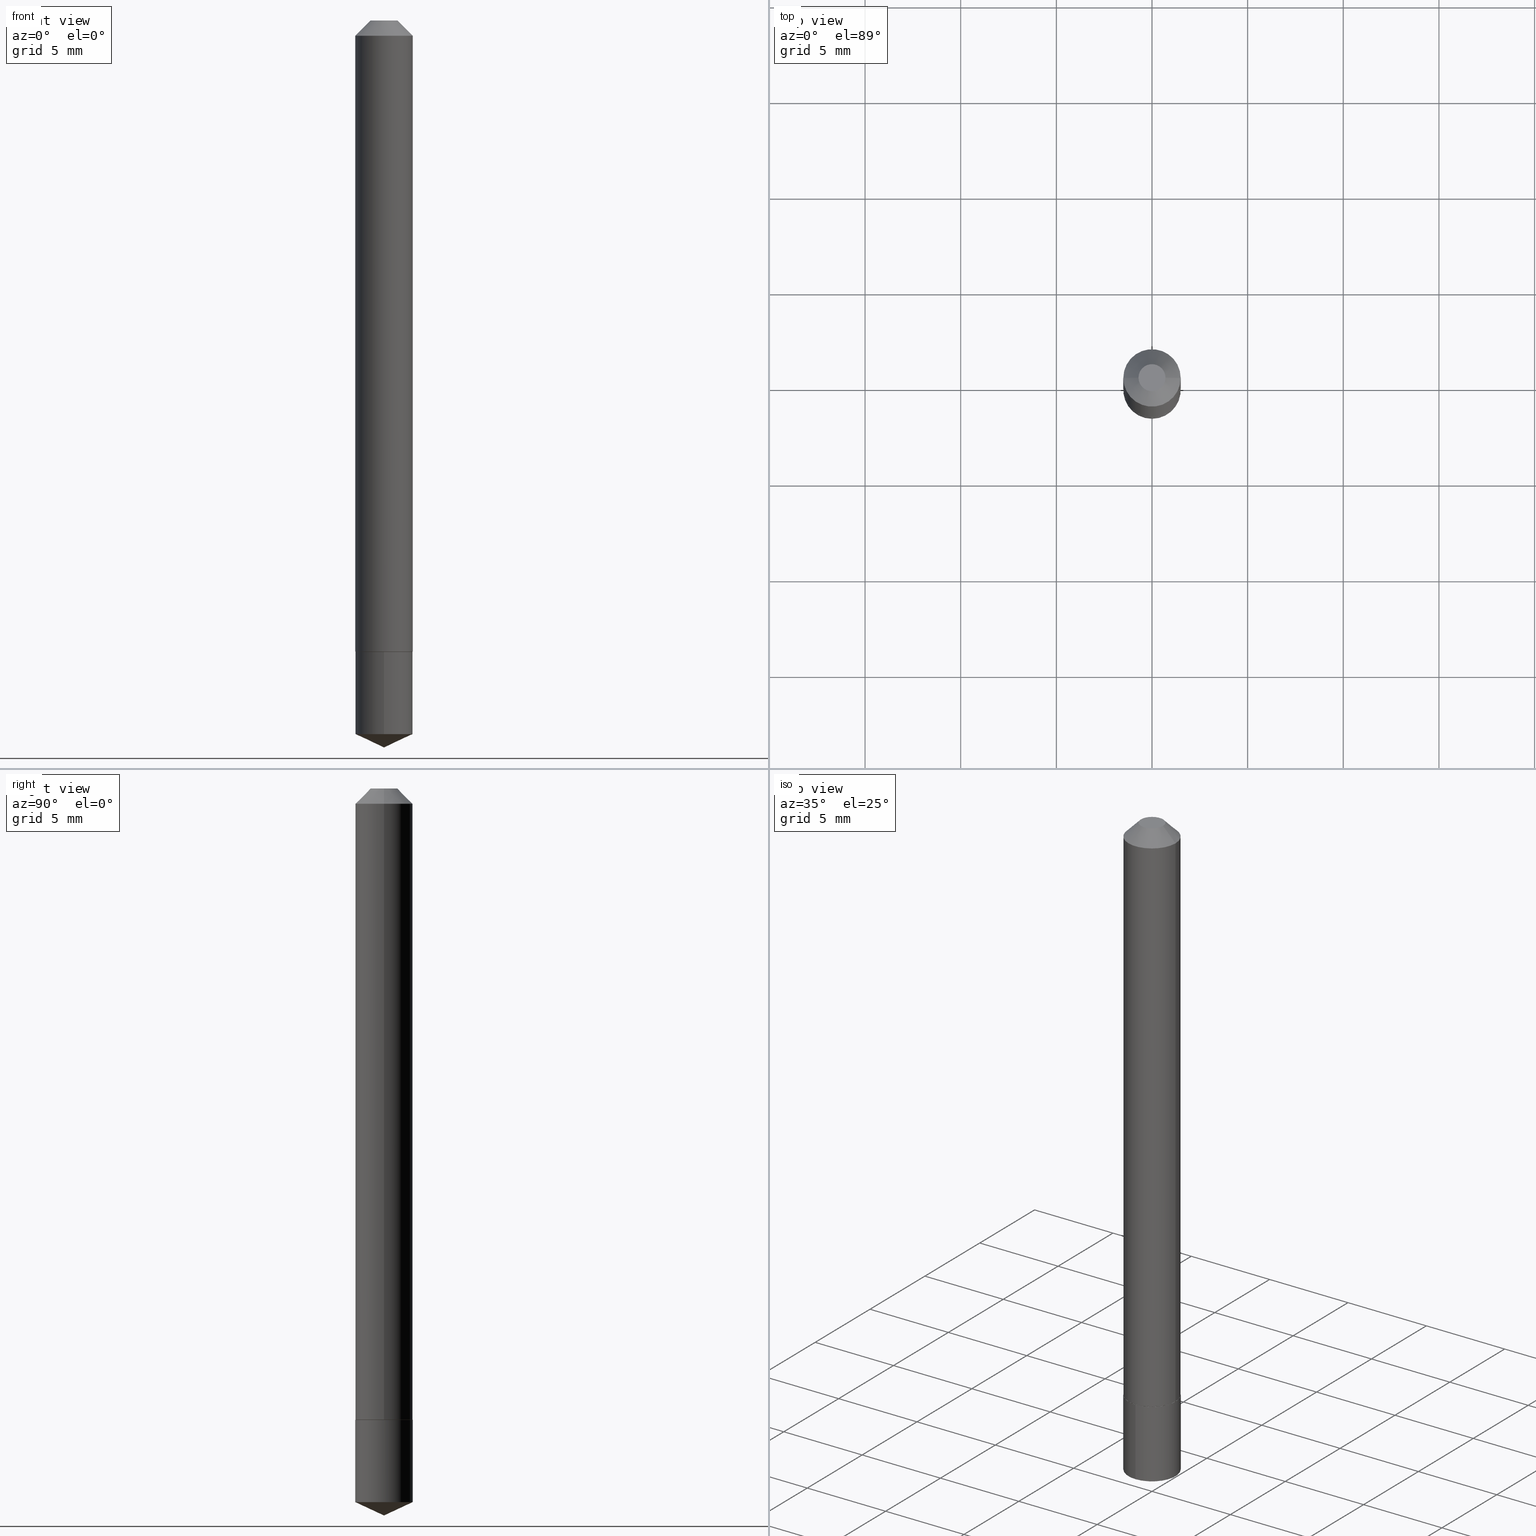
[diagram: canonical four-view strip — front | top / right | iso, engineering-drawing reading convention]
A machine part, canonical four-view strip (front | top / right | iso — engineering-drawing reading convention). The complete STEP part file that produces these views, byte-faithful:
ISO-10303-21;
HEADER;
FILE_DESCRIPTION (( 'STEP AP203' ),
    '1' );
FILE_NAME ('7047.STEP',
    '2024-04-23T14:56:22',
    ( '' ),
    ( '' ),
    'SwSTEP 2.0',
    'SolidWorks 2023',
    '' );
FILE_SCHEMA (( 'CONFIG_CONTROL_DESIGN' ));
ENDSEC;

DATA;
#1 = CALENDAR_DATE ( 2024, 23, 4 ) ;
#2 = AXIS2_PLACEMENT_3D ( 'NONE', #24, #349, #142 ) ;
#3 = EDGE_LOOP ( 'NONE', ( #274, #36 ) ) ;
#4 = CARTESIAN_POINT ( 'NONE',  ( 3.177153072995728757E-29, -4.536132555425014733E-15, -1.299199999999999910 ) ) ;
#5 = ORIENTED_EDGE ( 'NONE', *, *, #292, .F. ) ;
#6 = CARTESIAN_POINT ( 'NONE',  ( 3.175930338592637077E-29, -4.534386814755593230E-15, -1.298699999999999966 ) ) ;
#7 = EDGE_LOOP ( 'NONE', ( #213, #218, #68, #185 ) ) ;
#8 = LINE ( 'NONE', #341, #281 ) ;
#9 = AXIS2_PLACEMENT_3D ( 'NONE', #223, #344, #75 ) ;
#10 = VERTEX_POINT ( 'NONE', #284 ) ;
#11 = CIRCLE ( 'NONE', #18, 0.05905000000000000526 ) ;
#12 = LOCAL_TIME ( 10, 56, 22.00000000000000000, #379 ) ;
#13 = DIRECTION ( 'NONE',  ( 1.000000000000000000, -6.982962677686266711E-15, 0.000000000000000000 ) ) ;
#14 = MANIFOLD_SOLID_BREP ( 'Body-Move/Copy2[1]', #57 ) ;
#15 = DIRECTION ( 'NONE',  ( -2.445468806185136597E-29, 3.491481338843145583E-15, 1.000000000000000000 ) ) ;
#16 = CC_DESIGN_PERSON_AND_ORGANIZATION_ASSIGNMENT ( #105, #155, ( #196 ) ) ;
#17 = CARTESIAN_POINT ( 'NONE',  ( 1.033218263338721736E-47, -1.475161848834461579E-33, -4.225031457058385402E-19 ) ) ;
#18 = AXIS2_PLACEMENT_3D ( 'NONE', #60, #85, #257 ) ;
#19 = LOCAL_TIME ( 10, 56, 22.00000000000000000, #278 ) ;
#20 = EDGE_CURVE ( 'NONE', #154, #63, #226, .T. ) ;
#21 = DIRECTION ( 'NONE',  ( 1.000000000000000000, -6.982962677686267499E-15, 4.876176775795936353E-29 ) ) ;
#22 = CC_DESIGN_PERSON_AND_ORGANIZATION_ASSIGNMENT ( #43, #340, ( #104 ) ) ;
#23 = CARTESIAN_POINT ( 'NONE',  ( 3.177153072995728757E-29, -4.536132555425014733E-15, -1.299199999999999910 ) ) ;
#24 = CARTESIAN_POINT ( 'NONE',  ( 0.000000000000000000, 0.000000000000000000, 0.000000000000000000 ) ) ;
#25 = EDGE_CURVE ( 'NONE', #388, #210, #357, .T. ) ;
#26 =( CONVERSION_BASED_UNIT ( 'INCH', #288 ) LENGTH_UNIT ( ) NAMED_UNIT ( #374 ) );
#27 = AXIS2_PLACEMENT_3D ( 'NONE', #244, #100, #131 ) ;
#28 = APPROVAL_PERSON_ORGANIZATION ( #303, #359, #329 ) ;
#29 = PRODUCT_DEFINITION ( 'UNKNOWN', '', #104, #146 ) ;
#30 = CARTESIAN_POINT ( 'NONE',  ( 4.195754854663708995E-16, 0.05904999999999546723, -1.299200000000000133 ) ) ;
#31 = ADVANCED_FACE ( 'NONE', ( #253 ), #265, .T. ) ;
#32 = AXIS2_PLACEMENT_3D ( 'NONE', #6, #252, #194 ) ;
#33 = APPROVAL_DATE_TIME ( #296, #89 ) ;
#34 = ORIENTED_EDGE ( 'NONE', *, *, #74, .T. ) ;
#35 = SHAPE_DEFINITION_REPRESENTATION ( #315, #148 ) ;
#36 = ORIENTED_EDGE ( 'NONE', *, *, #292, .T. ) ;
#37 = ADVANCED_FACE ( 'NONE', ( #367 ), #101, .T. ) ;
#38 = CARTESIAN_POINT ( 'NONE',  ( 3.177153072995728757E-29, -4.536132555425014733E-15, -1.299199999999999910 ) ) ;
#39 = CIRCLE ( 'NONE', #167, 0.05904999999999999832 ) ;
#40 = ORIENTED_EDGE ( 'NONE', *, *, #92, .T. ) ;
#41 = FACE_OUTER_BOUND ( 'NONE', #277, .T. ) ;
#42 = ORIENTED_EDGE ( 'NONE', *, *, #255, .F. ) ;
#43 = PERSON_AND_ORGANIZATION ( #186, #353 ) ;
#44 = DIRECTION ( 'NONE',  ( -6.982962677686265922E-15, -1.000000000000000000, 4.626330217890369336E-15 ) ) ;
#45 = CARTESIAN_POINT ( 'NONE',  ( -0.05905000000000000526, -1.902172317830880095E-15, -0.03125000000000021511 ) ) ;
#46 = CC_DESIGN_DATE_AND_TIME_ASSIGNMENT ( #151, #267, ( #196 ) ) ;
#47 = DIRECTION ( 'NONE',  ( -0.7071067811868433362, 7.493145998871423856E-15, 0.7071067811862516983 ) ) ;
#48 = DIRECTION ( 'NONE',  ( -2.445468806185136597E-29, 3.491481338843145583E-15, 1.000000000000000000 ) ) ;
#49 = AXIS2_PLACEMENT_3D ( 'NONE', #313, #249, #273 ) ;
#50 = CARTESIAN_POINT ( 'NONE',  ( -4.123439461173421824E-16, -0.05905000000000452942, -1.299199999999999688 ) ) ;
#51 = UNCERTAINTY_MEASURE_WITH_UNIT (LENGTH_MEASURE( 1.000000000000000082E-05 ), #26, 'distance_accuracy_value', 'NONE');
#52 = CYLINDRICAL_SURFACE ( 'NONE', #120, 0.05904999999999999832 ) ;
#53 = EDGE_CURVE ( 'NONE', #63, #210, #248, .T. ) ;
#54 = PRODUCT ( '7047', '7047', '', ( #227 ) ) ;
#55 = DIRECTION ( 'NONE',  ( 1.000000000000000000, -6.982962677686266711E-15, 4.876227310796756046E-29 ) ) ;
#56 = EDGE_CURVE ( 'NONE', #243, #216, #250, .T. ) ;
#57 = CLOSED_SHELL ( 'NONE', ( #373, #295, #215, #287, #301 ) ) ;
#58 = AXIS2_PLACEMENT_3D ( 'NONE', #17, #222, #168 ) ;
#59 = CALENDAR_DATE ( 2024, 23, 4 ) ;
#60 = CARTESIAN_POINT ( 'NONE',  ( 7.642090019328604414E-31, -1.091087918388490513E-16, -0.03125000000000021511 ) ) ;
#61 = CARTESIAN_POINT ( 'NONE',  ( 1.033218263338721736E-47, -1.475161848834461579E-33, -4.225031457058385402E-19 ) ) ;
#62 = CC_DESIGN_APPROVAL ( #359, ( #196 ) ) ;
#63 = VERTEX_POINT ( 'NONE', #45 ) ;
#64 = CALENDAR_DATE ( 2024, 23, 4 ) ;
#65 = EDGE_LOOP ( 'NONE', ( #263, #121 ) ) ;
#66 = APPROVAL_DATE_TIME ( #211, #359 ) ;
#67 = FACE_OUTER_BOUND ( 'NONE', #319, .T. ) ;
#68 = ORIENTED_EDGE ( 'NONE', *, *, #92, .F. ) ;
#69 = DIRECTION ( 'NONE',  ( 2.445313604768416258E-29, -3.491703596105404816E-15, -1.000000000000000000 ) ) ;
#70 = VECTOR ( 'NONE', #386, 39.37007874015748143 ) ;
#71 = CONICAL_SURFACE ( 'NONE', #145, 0.05905000000000000526, 0.7853981633974449483 ) ;
#72 = VERTEX_POINT ( 'NONE', #165 ) ;
#73 = DIRECTION ( 'NONE',  ( -2.445313604768416538E-29, 3.491703596105404816E-15, 1.000000000000000000 ) ) ;
#74 = EDGE_CURVE ( 'NONE', #243, #10, #209, .T. ) ;
#75 = DIRECTION ( 'NONE',  ( 1.000000000000000000, -6.982962677686267499E-15, 0.000000000000000000 ) ) ;
#76 = CARTESIAN_POINT ( 'NONE',  ( 3.177153072995728757E-29, -4.536132555425014733E-15, -1.299199999999999910 ) ) ;
#77 = CARTESIAN_POINT ( 'NONE',  ( 3.177153072995728197E-29, -4.536132555425013945E-15, -1.299199999999999688 ) ) ;
#78 = AXIS2_PLACEMENT_3D ( 'NONE', #61, #79, #55 ) ;
#79 = DIRECTION ( 'NONE',  ( -2.445468806185136597E-29, 3.491481338843145583E-15, 1.000000000000000000 ) ) ;
#80 = DIRECTION ( 'NONE',  ( -2.445313604768416538E-29, 3.491703596105404816E-15, 1.000000000000000000 ) ) ;
#81 = CC_DESIGN_DATE_AND_TIME_ASSIGNMENT ( #113, #231, ( #29 ) ) ;
#82 = CARTESIAN_POINT ( 'NONE',  ( 0.000000000000000000, 0.000000000000000000, 0.000000000000000000 ) ) ;
#83 = AXIS2_PLACEMENT_3D ( 'NONE', #242, #96, #212 ) ;
#84 = DIRECTION ( 'NONE',  ( -2.445313604768416538E-29, 3.491703596105404816E-15, 1.000000000000000000 ) ) ;
#85 = DIRECTION ( 'NONE',  ( -2.445468806185136597E-29, 3.491481338843145583E-15, 1.000000000000000000 ) ) ;
#86 = APPROVAL_STATUS ( 'not_yet_approved' ) ;
#87 = AXIS2_PLACEMENT_3D ( 'NONE', #275, #73, #187 ) ;
#88 = LINE ( 'NONE', #354, #325 ) ;
#89 = APPROVAL ( #86, 'UNSPECIFIED' ) ;
#90 = CARTESIAN_POINT ( 'NONE',  ( 0.05905000000000000526, -5.142211986072580675E-16, -0.03125000000000021511 ) ) ;
#91 = AXIS2_PLACEMENT_3D ( 'NONE', #4, #307, #337 ) ;
#92 = EDGE_CURVE ( 'NONE', #210, #63, #11, .T. ) ;
#93 = ORIENTED_EDGE ( 'NONE', *, *, #271, .F. ) ;
#94 = DIRECTION ( 'NONE',  ( -2.445313604768416538E-29, 3.491703596105404816E-15, 1.000000000000000000 ) ) ;
#95 = ORIENTED_EDGE ( 'NONE', *, *, #25, .T. ) ;
#96 = DIRECTION ( 'NONE',  ( -2.445313604768416538E-29, 3.491703596105404816E-15, 1.000000000000000000 ) ) ;
#97 = CC_DESIGN_PERSON_AND_ORGANIZATION_ASSIGNMENT ( #260, #347, ( #54 ) ) ;
#98 = EDGE_LOOP ( 'NONE', ( #308, #331, #93, #239 ) ) ;
#99 = ADVANCED_FACE ( 'NONE', ( #378 ), #114, .T. ) ;
#100 = DIRECTION ( 'NONE',  ( -2.438088387897960049E-29, 3.491481338843145188E-15, 1.000000000000000000 ) ) ;
#101 = CONICAL_SURFACE ( 'NONE', #200, 0.05905000000000015792, 0.7853981633978666110 ) ;
#102 = CARTESIAN_POINT ( 'NONE',  ( 3.175930338592637077E-29, -4.534386814755593230E-15, -1.298699999999999966 ) ) ;
#103 = CIRCLE ( 'NONE', #352, 0.05855000000000011584 ) ;
#104 = PRODUCT_DEFINITION_FORMATION_WITH_SPECIFIED_SOURCE ( 'ANY', '', #54, .NOT_KNOWN. ) ;
#105 = PERSON_AND_ORGANIZATION ( #186, #353 ) ;
#106 = CARTESIAN_POINT ( 'NONE',  ( 0.05905000000000015792, -4.946730760872968939E-15, -1.298699999999999966 ) ) ;
#107 = CARTESIAN_POINT ( 'NONE',  ( 3.658433684094027732E-29, -5.223937750133296047E-15, -1.496099999999999985 ) ) ;
#108 = DIRECTION ( 'NONE',  ( 1.000000000000000000, -6.982962677686270655E-15, 0.000000000000000000 ) ) ;
#109 = ADVANCED_FACE ( 'NONE', ( #203 ), #71, .T. ) ;
#110 =( GEOMETRIC_REPRESENTATION_CONTEXT ( 3 ) GLOBAL_UNCERTAINTY_ASSIGNED_CONTEXT ( ( #51 ) ) GLOBAL_UNIT_ASSIGNED_CONTEXT ( ( #26, #345, #137 ) ) REPRESENTATION_CONTEXT ( 'NONE', 'WORKASPACE' ) );
#111 = DIRECTION ( 'NONE',  ( 1.000000000000000000, 0.000000000000000000, 0.000000000000000000 ) ) ;
#112 = DIRECTION ( 'NONE',  ( -0.7071067811865451302, 2.468850131082231817E-15, -0.7071067811865499042 ) ) ;
#113 = DATE_AND_TIME ( #59, #12 ) ;
#114 = CYLINDRICAL_SURFACE ( 'NONE', #2, 0.05905000000000008159 ) ;
#115 = CC_DESIGN_PERSON_AND_ORGANIZATION_ASSIGNMENT ( #126, #327, ( #104 ) ) ;
#116 = AXIS2_PLACEMENT_3D ( 'NONE', #280, #80, #228 ) ;
#117 = APPROVAL_STATUS ( 'not_yet_approved' ) ;
#118 = ADVANCED_FACE ( 'NONE', ( #387 ), #205, .F. ) ;
#119 = ORIENTED_EDGE ( 'NONE', *, *, #140, .F. ) ;
#120 = AXIS2_PLACEMENT_3D ( 'NONE', #23, #84, #224 ) ;
#121 = ORIENTED_EDGE ( 'NONE', *, *, #247, .T. ) ;
#122 = APPROVAL_STATUS ( 'not_yet_approved' ) ;
#123 = ORIENTED_EDGE ( 'NONE', *, *, #247, .F. ) ;
#124 = VECTOR ( 'NONE', #112, 39.37007874015748143 ) ;
#125 = ORIENTED_EDGE ( 'NONE', *, *, #184, .F. ) ;
#126 = PERSON_AND_ORGANIZATION ( #186, #353 ) ;
#127 = DIRECTION ( 'NONE',  ( 6.982962677686265922E-15, 1.000000000000000000, -3.491703596105404816E-15 ) ) ;
#128 = ORIENTED_EDGE ( 'NONE', *, *, #286, .T. ) ;
#129 = DIRECTION ( 'NONE',  ( -2.445313604768416538E-29, 3.491703596105404816E-15, 1.000000000000000000 ) ) ;
#130 = ORIENTED_EDGE ( 'NONE', *, *, #356, .F. ) ;
#131 = DIRECTION ( 'NONE',  ( 1.000000000000000000, -6.982962677686265922E-15, 4.876176775795935793E-29 ) ) ;
#132 = CC_DESIGN_APPROVAL ( #149, ( #29 ) ) ;
#133 = ORIENTED_EDGE ( 'NONE', *, *, #356, .T. ) ;
#134 = CARTESIAN_POINT ( 'NONE',  ( 3.177153072995728197E-29, -4.536132555425013945E-15, -1.299199999999999688 ) ) ;
#135 = DIRECTION ( 'NONE',  ( -2.445468806185136597E-29, 3.491481338843145583E-15, 1.000000000000000000 ) ) ;
#136 = EDGE_CURVE ( 'NONE', #361, #210, #383, .T. ) ;
#137 =( NAMED_UNIT ( * ) SI_UNIT ( $, .STERADIAN. ) SOLID_ANGLE_UNIT ( ) );
#138 = VECTOR ( 'NONE', #207, 39.37007874015748143 ) ;
#139 = APPROVAL_PERSON_ORGANIZATION ( #350, #89, #268 ) ;
#140 = EDGE_CURVE ( 'NONE', #10, #161, #297, .T. ) ;
#141 = LINE ( 'NONE', #173, #124 ) ;
#142 = DIRECTION ( 'NONE',  ( 1.000000000000000000, -6.982962677686267499E-15, 4.876176775795936353E-29 ) ) ;
#143 = CARTESIAN_POINT ( 'NONE',  ( 0.05905000000000015792, -4.946730760872968939E-15, -1.298699999999999966 ) ) ;
#144 = VERTEX_POINT ( 'NONE', #150 ) ;
#145 = AXIS2_PLACEMENT_3D ( 'NONE', #175, #259, #180 ) ;
#146 = DESIGN_CONTEXT ( 'detailed design', #230, 'design' ) ;
#147 = FACE_OUTER_BOUND ( 'NONE', #7, .T. ) ;
#148 = ADVANCED_BREP_SHAPE_REPRESENTATION ( '7047', ( #14, #269, #376 ), #110 ) ;
#149 = APPROVAL ( #117, 'UNSPECIFIED' ) ;
#150 = CARTESIAN_POINT ( 'NONE',  ( 3.658433684094027732E-29, -5.223937750133295258E-15, -1.496099999999999985 ) ) ;
#151 = DATE_AND_TIME ( #219, #19 ) ;
#152 = DIRECTION ( 'NONE',  ( -1.000000000000000000, 6.982962677686265922E-15, -4.876176775795935793E-29 ) ) ;
#153 = EDGE_LOOP ( 'NONE', ( #190, #208, #241 ) ) ;
#154 = VERTEX_POINT ( 'NONE', #264 ) ;
#155 = PERSON_AND_ORGANIZATION_ROLE ( 'classification_officer' ) ;
#156 = CARTESIAN_POINT ( 'NONE',  ( 0.05905000000000000526, -5.214527379562231333E-16, -0.03125000000000021511 ) ) ;
#157 = DIRECTION ( 'NONE',  ( -2.445468806185136877E-29, 3.491481338843145188E-15, 1.000000000000000000 ) ) ;
#158 = ORIENTED_EDGE ( 'NONE', *, *, #56, .T. ) ;
#159 = CARTESIAN_POINT ( 'NONE',  ( -0.05855000000000011584, -4.117460556463364149E-15, -1.299199999999999688 ) ) ;
#160 = EDGE_CURVE ( 'NONE', #144, #10, #88, .T. ) ;
#161 = VERTEX_POINT ( 'NONE', #238 ) ;
#162 = SECURITY_CLASSIFICATION_LEVEL ( 'unclassified' ) ;
#163 = CC_DESIGN_PERSON_AND_ORGANIZATION_ASSIGNMENT ( #291, #202, ( #29 ) ) ;
#164 = DIRECTION ( 'NONE',  ( -6.328713451373380423E-15, -0.9063077870366499367, 0.4226182617406991082 ) ) ;
#165 = CARTESIAN_POINT ( 'NONE',  ( 0.05855000000000011584, -4.944985020203545858E-15, -1.299199999999999688 ) ) ;
#166 = PLANE ( 'NONE',  #27 ) ;
#167 = AXIS2_PLACEMENT_3D ( 'NONE', #76, #365, #44 ) ;
#168 = DIRECTION ( 'NONE',  ( 1.000000000000000000, -6.982962677686266711E-15, 4.876227310796756046E-29 ) ) ;
#169 =( LENGTH_UNIT ( ) NAMED_UNIT ( * ) SI_UNIT ( $, .METRE. ) );
#170 = VECTOR ( 'NONE', #314, 39.37007874015748143 ) ;
#171 = CIRCLE ( 'NONE', #78, 0.02779999999999999832 ) ;
#172 = DATE_AND_TIME ( #317, #346 ) ;
#173 = CARTESIAN_POINT ( 'NONE',  ( -0.05905000000000000526, 3.032351542785250307E-16, -0.03125000000000021511 ) ) ;
#174 = CARTESIAN_POINT ( 'NONE',  ( 0.000000000000000000, 0.000000000000000000, 0.000000000000000000 ) ) ;
#175 = CARTESIAN_POINT ( 'NONE',  ( 7.642090019328604414E-31, -1.091087918388490513E-16, -0.03125000000000021511 ) ) ;
#176 = DIRECTION ( 'NONE',  ( 2.438088387897960049E-29, -3.491481338843145188E-15, -1.000000000000000000 ) ) ;
#177 = ORIENTED_EDGE ( 'NONE', *, *, #53, .F. ) ;
#178 = CIRCLE ( 'NONE', #32, 0.05905000000000015792 ) ;
#179 = APPROVAL_PERSON_ORGANIZATION ( #198, #149, #199 ) ;
#180 = DIRECTION ( 'NONE',  ( -1.000000000000000000, 6.982962677686267499E-15, 0.000000000000000000 ) ) ;
#181 = ORIENTED_EDGE ( 'NONE', *, *, #56, .F. ) ;
#182 = ORIENTED_EDGE ( 'NONE', *, *, #276, .F. ) ;
#183 = FACE_OUTER_BOUND ( 'NONE', #153, .T. ) ;
#184 = EDGE_CURVE ( 'NONE', #154, #388, #178, .T. ) ;
#185 = ORIENTED_EDGE ( 'NONE', *, *, #25, .F. ) ;
#186 = PERSON ( 'UNSPECIFIED', 'UNSPECIFIED', 'UNSPECIFIED', ('UNSPECIFIED'), ('UNSPECIFIED'), ('UNSPECIFIED') ) ;
#187 = DIRECTION ( 'NONE',  ( -6.982962677686265922E-15, -1.000000000000000000, 4.626330217890369336E-15 ) ) ;
#188 = VECTOR ( 'NONE', #299, 39.37007874015748143 ) ;
#189 = LOCAL_TIME ( 10, 56, 22.00000000000000000, #389 ) ;
#190 = ORIENTED_EDGE ( 'NONE', *, *, #229, .F. ) ;
#191 = CARTESIAN_POINT ( 'NONE',  ( -4.123439461173381888E-16, -0.05905000000000514698, -1.468564532785947341 ) ) ;
#192 = DIRECTION ( 'NONE',  ( -2.445468806185136597E-29, 3.491481338843145583E-15, 1.000000000000000000 ) ) ;
#193 = EDGE_CURVE ( 'NONE', #216, #161, #351, .T. ) ;
#194 = DIRECTION ( 'NONE',  ( 1.000000000000000000, -6.982962677686270655E-15, 0.000000000000000000 ) ) ;
#195 = AXIS2_PLACEMENT_3D ( 'NONE', #279, #129, #304 ) ;
#196 = SECURITY_CLASSIFICATION ( '', '', #162 ) ;
#197 = APPLICATION_PROTOCOL_DEFINITION ( 'international standard', 'config_control_design', 1994, #206 ) ;
#198 = PERSON_AND_ORGANIZATION ( #186, #353 ) ;
#199 = APPROVAL_ROLE ( '' ) ;
#200 = AXIS2_PLACEMENT_3D ( 'NONE', #102, #15, #108 ) ;
#201 = VECTOR ( 'NONE', #220, 39.37007874015748143 ) ;
#202 = PERSON_AND_ORGANIZATION_ROLE ( 'creator' ) ;
#203 = FACE_OUTER_BOUND ( 'NONE', #302, .T. ) ;
#204 = ORIENTED_EDGE ( 'NONE', *, *, #184, .T. ) ;
#205 = PLANE ( 'NONE',  #306 ) ;
#206 = APPLICATION_CONTEXT ( 'configuration controlled 3d designs of mechanical parts and assemblies' ) ;
#207 = DIRECTION ( 'NONE',  ( -2.445313604768416818E-29, 3.491703596105404816E-15, 1.000000000000000000 ) ) ;
#208 = ORIENTED_EDGE ( 'NONE', *, *, #160, .T. ) ;
#209 = CIRCLE ( 'NONE', #116, 0.05904999999999999832 ) ;
#210 = VERTEX_POINT ( 'NONE', #156 ) ;
#211 = DATE_AND_TIME ( #64, #335 ) ;
#212 = DIRECTION ( 'NONE',  ( -6.982962677686265922E-15, -1.000000000000000000, 4.626330217890369336E-15 ) ) ;
#213 = ORIENTED_EDGE ( 'NONE', *, *, #271, .T. ) ;
#214 = CYLINDRICAL_SURFACE ( 'NONE', #91, 0.05904999999999999832 ) ;
#215 = ADVANCED_FACE ( 'NONE', ( #217 ), #232, .T. ) ;
#216 = VERTEX_POINT ( 'NONE', #50 ) ;
#217 = FACE_OUTER_BOUND ( 'NONE', #364, .T. ) ;
#218 = ORIENTED_EDGE ( 'NONE', *, *, #20, .T. ) ;
#219 = CALENDAR_DATE ( 2024, 23, 4 ) ;
#220 = DIRECTION ( 'NONE',  ( 0.7071067811868433362, -2.468850131085355312E-15, 0.7071067811862516983 ) ) ;
#221 = ADVANCED_FACE ( 'NONE', ( #41 ), #322, .T. ) ;
#222 = DIRECTION ( 'NONE',  ( -2.445468806185136597E-29, 3.491481338843145583E-15, 1.000000000000000000 ) ) ;
#223 = CARTESIAN_POINT ( 'NONE',  ( 7.642090019328604414E-31, -1.091087918388490513E-16, -0.03125000000000021511 ) ) ;
#224 = DIRECTION ( 'NONE',  ( -6.982962677686265922E-15, -1.000000000000000000, 4.626330217890369336E-15 ) ) ;
#225 = CIRCLE ( 'NONE', #266, 0.05905000000000015792 ) ;
#226 = LINE ( 'NONE', #246, #70 ) ;
#227 = MECHANICAL_CONTEXT ( 'NONE', #206, 'mechanical' ) ;
#228 = DIRECTION ( 'NONE',  ( -6.982962677686265922E-15, -1.000000000000000000, 4.626330217890369336E-15 ) ) ;
#229 = EDGE_CURVE ( 'NONE', #144, #243, #370, .T. ) ;
#230 = APPLICATION_CONTEXT ( 'configuration controlled 3d designs of mechanical parts and assemblies' ) ;
#231 = DATE_TIME_ROLE ( 'creation_date' ) ;
#232 = CONICAL_SURFACE ( 'NONE', #298, 84.42940631927480410, 1.134464013796318005 ) ;
#233 = APPROVAL_DATE_TIME ( #172, #149 ) ;
#234 = CLOSED_SHELL ( 'NONE', ( #221, #348, #31, #324, #37, #99, #109, #118 ) ) ;
#235 = CIRCLE ( 'NONE', #290, 0.05855000000000011584 ) ;
#236 = ORIENTED_EDGE ( 'NONE', *, *, #20, .F. ) ;
#237 = COORDINATED_UNIVERSAL_TIME_OFFSET ( 5, 0, .BEHIND. ) ;
#238 = CARTESIAN_POINT ( 'NONE',  ( 4.195754854663750410E-16, 0.05904999999999546723, -1.299200000000000133 ) ) ;
#239 = ORIENTED_EDGE ( 'NONE', *, *, #286, .F. ) ;
#240 = CC_DESIGN_SECURITY_CLASSIFICATION ( #196, ( #104 ) ) ;
#241 = ORIENTED_EDGE ( 'NONE', *, *, #74, .F. ) ;
#242 = CARTESIAN_POINT ( 'NONE',  ( 3.177153072995728757E-29, -4.536132555425014733E-15, -1.299199999999999910 ) ) ;
#243 = VERTEX_POINT ( 'NONE', #191 ) ;
#244 = CARTESIAN_POINT ( 'NONE',  ( 3.177153072995728197E-29, -4.536132555425013945E-15, -1.299199999999999688 ) ) ;
#245 = EDGE_LOOP ( 'NONE', ( #236, #204, #95, #177 ) ) ;
#246 = CARTESIAN_POINT ( 'NONE',  ( -0.05905000000000008159, 4.195754854663397395E-16, -2.904631170795525745E-30 ) ) ;
#247 = EDGE_CURVE ( 'NONE', #361, #384, #381, .T. ) ;
#248 = CIRCLE ( 'NONE', #9, 0.05905000000000000526 ) ;
#249 = DIRECTION ( 'NONE',  ( 2.445468806185136597E-29, -3.491481338843145583E-15, -1.000000000000000000 ) ) ;
#250 = LINE ( 'NONE', #338, #170 ) ;
#251 = ORIENTED_EDGE ( 'NONE', *, *, #160, .F. ) ;
#252 = DIRECTION ( 'NONE',  ( -2.445468806185136597E-29, 3.491481338843145583E-15, 1.000000000000000000 ) ) ;
#253 = FACE_OUTER_BOUND ( 'NONE', #98, .T. ) ;
#254 = CARTESIAN_POINT ( 'NONE',  ( 3.175930338592637077E-29, -4.534386814755593230E-15, -1.298699999999999966 ) ) ;
#255 = EDGE_CURVE ( 'NONE', #10, #243, #261, .T. ) ;
#256 = DIRECTION ( 'NONE',  ( 0.000000000000000000, 0.000000000000000000, 1.000000000000000000 ) ) ;
#257 = DIRECTION ( 'NONE',  ( 1.000000000000000000, -6.982962677686267499E-15, 0.000000000000000000 ) ) ;
#258 = CARTESIAN_POINT ( 'NONE',  ( 0.02779999999999999832, -3.524715214726533365E-16, -4.225031457039280658E-19 ) ) ;
#259 = DIRECTION ( 'NONE',  ( 2.445468806185136597E-29, -3.491481338843145583E-15, -1.000000000000000000 ) ) ;
#260 = PERSON_AND_ORGANIZATION ( #186, #353 ) ;
#261 = CIRCLE ( 'NONE', #87, 0.05904999999999999832 ) ;
#262 = CC_DESIGN_APPROVAL ( #89, ( #104 ) ) ;
#263 = ORIENTED_EDGE ( 'NONE', *, *, #385, .T. ) ;
#264 = CARTESIAN_POINT ( 'NONE',  ( -0.05905000000000015792, -4.114811329289252948E-15, -1.298699999999999966 ) ) ;
#265 = CONICAL_SURFACE ( 'NONE', #368, 0.05905000000000015792, 0.7853981633978666110 ) ;
#266 = AXIS2_PLACEMENT_3D ( 'NONE', #254, #135, #285 ) ;
#267 = DATE_TIME_ROLE ( 'classification_date' ) ;
#268 = APPROVAL_ROLE ( '' ) ;
#269 = MANIFOLD_SOLID_BREP ( 'Body-Move/Copy2[2]', #234 ) ;
#270 = ORIENTED_EDGE ( 'NONE', *, *, #336, .T. ) ;
#271 = EDGE_CURVE ( 'NONE', #388, #154, #225, .T. ) ;
#272 = EDGE_LOOP ( 'NONE', ( #34, #328, #362, #181 ) ) ;
#273 = DIRECTION ( 'NONE',  ( -1.000000000000000000, 6.982962677686267499E-15, 0.000000000000000000 ) ) ;
#274 = ORIENTED_EDGE ( 'NONE', *, *, #193, .T. ) ;
#275 = CARTESIAN_POINT ( 'NONE',  ( 3.591302469182453116E-29, -5.127503303606418827E-15, -1.468564532785947563 ) ) ;
#276 = EDGE_CURVE ( 'NONE', #72, #320, #103, .T. ) ;
#277 = EDGE_LOOP ( 'NONE', ( #123, #305, #40, #130 ) ) ;
#278 = COORDINATED_UNIVERSAL_TIME_OFFSET ( 5, 0, .BEHIND. ) ;
#279 = CARTESIAN_POINT ( 'NONE',  ( -9.261355384233625578E-28, 1.322449965224626373E-13, 37.87397874015748300 ) ) ;
#280 = CARTESIAN_POINT ( 'NONE',  ( 3.591302469182453116E-29, -5.127503303606418827E-15, -1.468564532785947563 ) ) ;
#281 = VECTOR ( 'NONE', #47, 39.37007874015748143 ) ;
#282 = DIRECTION ( 'NONE',  ( -2.445468806185136597E-29, 3.491481338843145583E-15, 1.000000000000000000 ) ) ;
#283 = DIRECTION ( 'NONE',  ( 1.000000000000000000, -6.982962677686270655E-15, 0.000000000000000000 ) ) ;
#284 = CARTESIAN_POINT ( 'NONE',  ( 4.195754854663751396E-16, 0.05904999999999488436, -1.468564532785947785 ) ) ;
#285 = DIRECTION ( 'NONE',  ( 1.000000000000000000, -6.982962677686270655E-15, 0.000000000000000000 ) ) ;
#286 = EDGE_CURVE ( 'NONE', #72, #388, #309, .T. ) ;
#287 = ADVANCED_FACE ( 'NONE', ( #67 ), #214, .T. ) ;
#288 = LENGTH_MEASURE_WITH_UNIT ( LENGTH_MEASURE( 0.02539999999999999897 ), #169 );
#289 = VECTOR ( 'NONE', #157, 39.37007874015748143 ) ;
#290 = AXIS2_PLACEMENT_3D ( 'NONE', #77, #282, #13 ) ;
#291 = PERSON_AND_ORGANIZATION ( #186, #353 ) ;
#292 = EDGE_CURVE ( 'NONE', #161, #216, #39, .T. ) ;
#293 = CYLINDRICAL_SURFACE ( 'NONE', #294, 0.05905000000000008159 ) ;
#294 = AXIS2_PLACEMENT_3D ( 'NONE', #174, #318, #21 ) ;
#295 = ADVANCED_FACE ( 'NONE', ( #183 ), #312, .T. ) ;
#296 = DATE_AND_TIME ( #1, #189 ) ;
#297 = LINE ( 'NONE', #30, #138 ) ;
#298 = AXIS2_PLACEMENT_3D ( 'NONE', #363, #94, #372 ) ;
#299 = DIRECTION ( 'NONE',  ( 0.7071067811865451302, -7.319954787623248157E-15, -0.7071067811865499042 ) ) ;
#300 = ORIENTED_EDGE ( 'NONE', *, *, #136, .F. ) ;
#301 = ADVANCED_FACE ( 'NONE', ( #332 ), #310, .F. ) ;
#302 = EDGE_LOOP ( 'NONE', ( #300, #326, #133, #390 ) ) ;
#303 = PERSON_AND_ORGANIZATION ( #186, #353 ) ;
#304 = DIRECTION ( 'NONE',  ( -6.982962677686267499E-15, -1.000000000000000000, 3.520397390770434543E-15 ) ) ;
#305 = ORIENTED_EDGE ( 'NONE', *, *, #136, .T. ) ;
#306 = AXIS2_PLACEMENT_3D ( 'NONE', #358, #176, #152 ) ;
#307 = DIRECTION ( 'NONE',  ( -2.445313604768416538E-29, 3.491703596105404816E-15, 1.000000000000000000 ) ) ;
#308 = ORIENTED_EDGE ( 'NONE', *, *, #276, .T. ) ;
#309 = LINE ( 'NONE', #106, #201 ) ;
#310 = PLANE ( 'NONE',  #334 ) ;
#311 = CARTESIAN_POINT ( 'NONE',  ( 3.175930338592637077E-29, -4.534386814755593230E-15, -1.298699999999999966 ) ) ;
#312 = CONICAL_SURFACE ( 'NONE', #195, 84.42940631927480410, 1.134464013796318005 ) ;
#313 = CARTESIAN_POINT ( 'NONE',  ( 7.642090019328604414E-31, -1.091087918388490513E-16, -0.03125000000000021511 ) ) ;
#314 = DIRECTION ( 'NONE',  ( -2.445313604768416818E-29, 3.491703596105404816E-15, 1.000000000000000000 ) ) ;
#315 = PRODUCT_DEFINITION_SHAPE ( 'NONE', 'NONE',  #29 ) ;
#316 = FACE_OUTER_BOUND ( 'NONE', #272, .T. ) ;
#317 = CALENDAR_DATE ( 2024, 23, 4 ) ;
#318 = DIRECTION ( 'NONE',  ( -2.445468806185136597E-29, 3.491481338843145583E-15, 1.000000000000000000 ) ) ;
#319 = EDGE_LOOP ( 'NONE', ( #119, #355, #158, #5 ) ) ;
#320 = VERTEX_POINT ( 'NONE', #159 ) ;
#321 = EDGE_CURVE ( 'NONE', #320, #154, #8, .T. ) ;
#322 = CONICAL_SURFACE ( 'NONE', #49, 0.05905000000000000526, 0.7853981633974449483 ) ;
#323 = DIRECTION ( 'NONE',  ( 6.439704144417036664E-15, 0.9063077870366530453, 0.4226182617406928910 ) ) ;
#324 = ADVANCED_FACE ( 'NONE', ( #343 ), #166, .F. ) ;
#325 = VECTOR ( 'NONE', #323, 39.37007874015748143 ) ;
#326 = ORIENTED_EDGE ( 'NONE', *, *, #385, .F. ) ;
#327 = PERSON_AND_ORGANIZATION_ROLE ( 'design_supplier' ) ;
#328 = ORIENTED_EDGE ( 'NONE', *, *, #140, .T. ) ;
#329 = APPROVAL_ROLE ( '' ) ;
#330 = DIRECTION ( 'NONE',  ( 1.000000000000000000, -6.982962677686266711E-15, 0.000000000000000000 ) ) ;
#331 = ORIENTED_EDGE ( 'NONE', *, *, #321, .T. ) ;
#332 = FACE_OUTER_BOUND ( 'NONE', #3, .T. ) ;
#333 = ORIENTED_EDGE ( 'NONE', *, *, #336, .F. ) ;
#334 = AXIS2_PLACEMENT_3D ( 'NONE', #38, #69, #127 ) ;
#335 = LOCAL_TIME ( 10, 56, 22.00000000000000000, #237 ) ;
#336 = EDGE_CURVE ( 'NONE', #320, #72, #235, .T. ) ;
#337 = DIRECTION ( 'NONE',  ( -6.982962677686265922E-15, -1.000000000000000000, 4.626330217890369336E-15 ) ) ;
#338 = CARTESIAN_POINT ( 'NONE',  ( -4.123439461173421824E-16, -0.05905000000000452942, -1.299199999999999688 ) ) ;
#339 = ORIENTED_EDGE ( 'NONE', *, *, #321, .F. ) ;
#340 = PERSON_AND_ORGANIZATION_ROLE ( 'creator' ) ;
#341 = CARTESIAN_POINT ( 'NONE',  ( -0.05905000000000015792, -4.114811329289252948E-15, -1.298699999999999966 ) ) ;
#342 = CARTESIAN_POINT ( 'NONE',  ( 0.05905000000000008159, -4.123439461173746736E-16, 2.879382386107504424E-30 ) ) ;
#343 = FACE_OUTER_BOUND ( 'NONE', #371, .T. ) ;
#344 = DIRECTION ( 'NONE',  ( -2.445468806185136597E-29, 3.491481338843145583E-15, 1.000000000000000000 ) ) ;
#345 =( NAMED_UNIT ( * ) PLANE_ANGLE_UNIT ( ) SI_UNIT ( $, .RADIAN. ) );
#346 = LOCAL_TIME ( 10, 56, 22.00000000000000000, #377 ) ;
#347 = PERSON_AND_ORGANIZATION_ROLE ( 'design_owner' ) ;
#348 = ADVANCED_FACE ( 'NONE', ( #147 ), #293, .T. ) ;
#349 = DIRECTION ( 'NONE',  ( -2.445468806185136597E-29, 3.491481338843145583E-15, 1.000000000000000000 ) ) ;
#350 = PERSON_AND_ORGANIZATION ( #186, #353 ) ;
#351 = CIRCLE ( 'NONE', #83, 0.05904999999999999832 ) ;
#352 = AXIS2_PLACEMENT_3D ( 'NONE', #134, #192, #330 ) ;
#353 = ORGANIZATION ( 'UNSPECIFIED', 'UNSPECIFIED', '' ) ;
#354 = CARTESIAN_POINT ( 'NONE',  ( 3.658840495704122953E-29, -5.223360236863041456E-15, -1.496099999999999985 ) ) ;
#355 = ORIENTED_EDGE ( 'NONE', *, *, #255, .T. ) ;
#356 = EDGE_CURVE ( 'NONE', #384, #63, #141, .T. ) ;
#357 = LINE ( 'NONE', #342, #289 ) ;
#358 = CARTESIAN_POINT ( 'NONE',  ( 5.166091316693608679E-48, -7.375809244172307894E-34, -2.112515728529192701E-19 ) ) ;
#359 = APPROVAL ( #122, 'UNSPECIFIED' ) ;
#360 = VECTOR ( 'NONE', #164, 39.37007874015748854 ) ;
#361 = VERTEX_POINT ( 'NONE', #258 ) ;
#362 = ORIENTED_EDGE ( 'NONE', *, *, #193, .F. ) ;
#363 = CARTESIAN_POINT ( 'NONE',  ( -9.261355384233625578E-28, 1.322449965224626373E-13, 37.87397874015748300 ) ) ;
#364 = EDGE_LOOP ( 'NONE', ( #251, #369, #42 ) ) ;
#365 = DIRECTION ( 'NONE',  ( -2.445313604768416538E-29, 3.491703596105404816E-15, 1.000000000000000000 ) ) ;
#366 = PRODUCT_RELATED_PRODUCT_CATEGORY ( 'detail', '', ( #54 ) ) ;
#367 = FACE_OUTER_BOUND ( 'NONE', #382, .T. ) ;
#368 = AXIS2_PLACEMENT_3D ( 'NONE', #311, #48, #283 ) ;
#369 = ORIENTED_EDGE ( 'NONE', *, *, #229, .T. ) ;
#370 = LINE ( 'NONE', #107, #360 ) ;
#371 = EDGE_LOOP ( 'NONE', ( #182, #333 ) ) ;
#372 = DIRECTION ( 'NONE',  ( -6.982962677686267499E-15, -1.000000000000000000, 3.520397390770434543E-15 ) ) ;
#373 = ADVANCED_FACE ( 'NONE', ( #316 ), #52, .T. ) ;
#374 = DIMENSIONAL_EXPONENTS ( 1.000000000000000000, 0.000000000000000000, 0.000000000000000000, 0.000000000000000000, 0.000000000000000000, 0.000000000000000000, 0.000000000000000000 ) ;
#375 = CARTESIAN_POINT ( 'NONE',  ( -0.02779999999999999832, 2.486807583591016636E-16, -4.225031457073866508E-19 ) ) ;
#376 = AXIS2_PLACEMENT_3D ( 'NONE', #82, #256, #111 ) ;
#377 = COORDINATED_UNIVERSAL_TIME_OFFSET ( 5, 0, .BEHIND. ) ;
#378 = FACE_OUTER_BOUND ( 'NONE', #245, .T. ) ;
#379 = COORDINATED_UNIVERSAL_TIME_OFFSET ( 5, 0, .BEHIND. ) ;
#380 = APPLICATION_PROTOCOL_DEFINITION ( 'international standard', 'config_control_design', 1994, #230 ) ;
#381 = CIRCLE ( 'NONE', #58, 0.02779999999999999832 ) ;
#382 = EDGE_LOOP ( 'NONE', ( #339, #270, #128, #125 ) ) ;
#383 = LINE ( 'NONE', #90, #188 ) ;
#384 = VERTEX_POINT ( 'NONE', #375 ) ;
#385 = EDGE_CURVE ( 'NONE', #384, #361, #171, .T. ) ;
#386 = DIRECTION ( 'NONE',  ( -2.445468806185136877E-29, 3.491481338843145188E-15, 1.000000000000000000 ) ) ;
#387 = FACE_OUTER_BOUND ( 'NONE', #65, .T. ) ;
#388 = VERTEX_POINT ( 'NONE', #143 ) ;
#389 = COORDINATED_UNIVERSAL_TIME_OFFSET ( 5, 0, .BEHIND. ) ;
#390 = ORIENTED_EDGE ( 'NONE', *, *, #53, .T. ) ;
ENDSEC;
END-ISO-10303-21;
